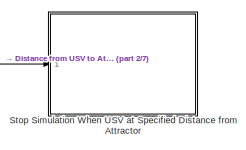
[diagram: root canvas - part 1/7, top center region]
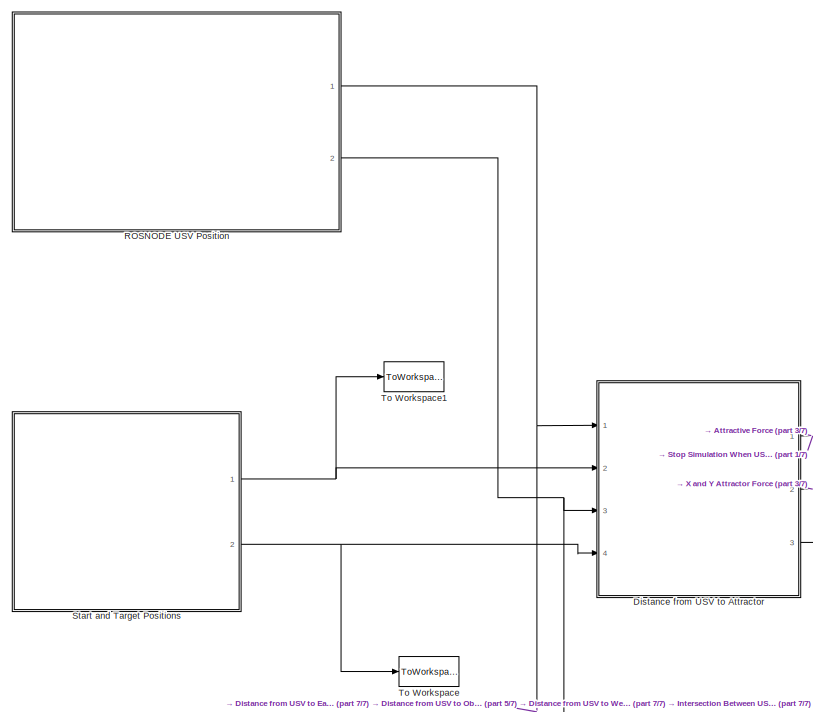
[diagram: root canvas - part 2/7, top left region]
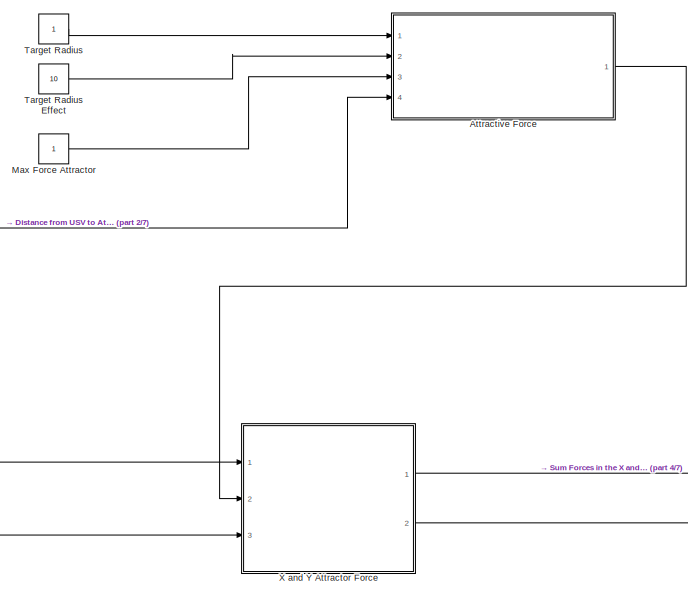
[diagram: root canvas - part 3/7, top center region]
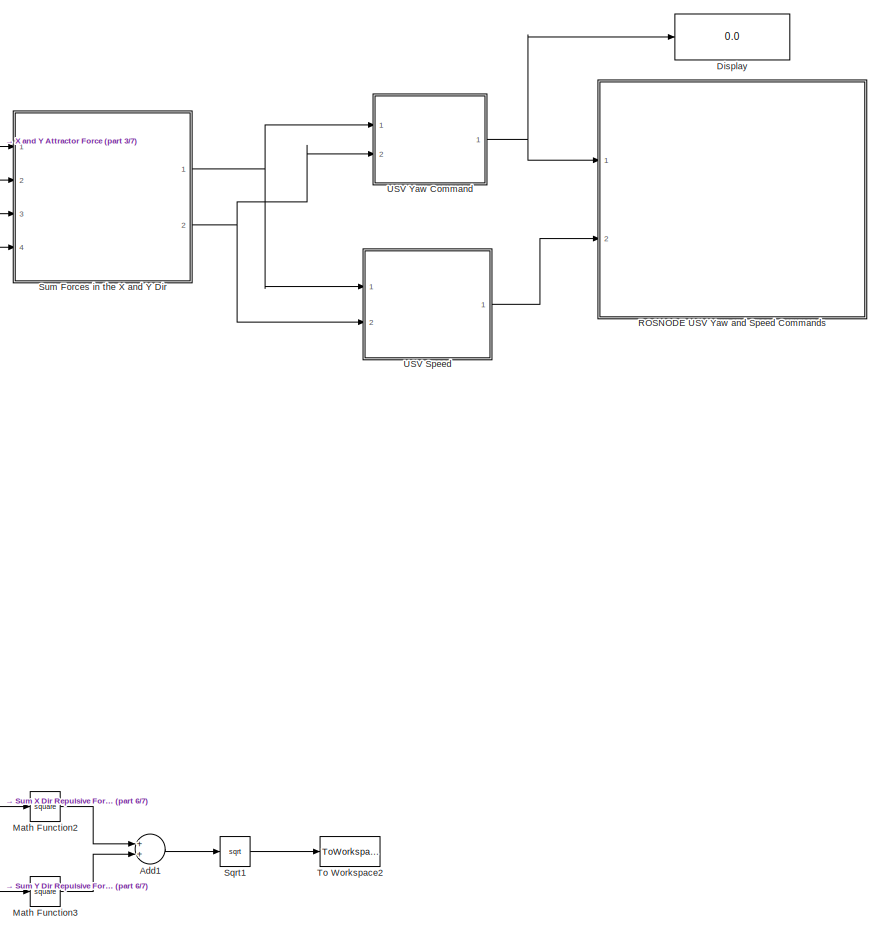
[diagram: root canvas - part 4/7, middle right region]
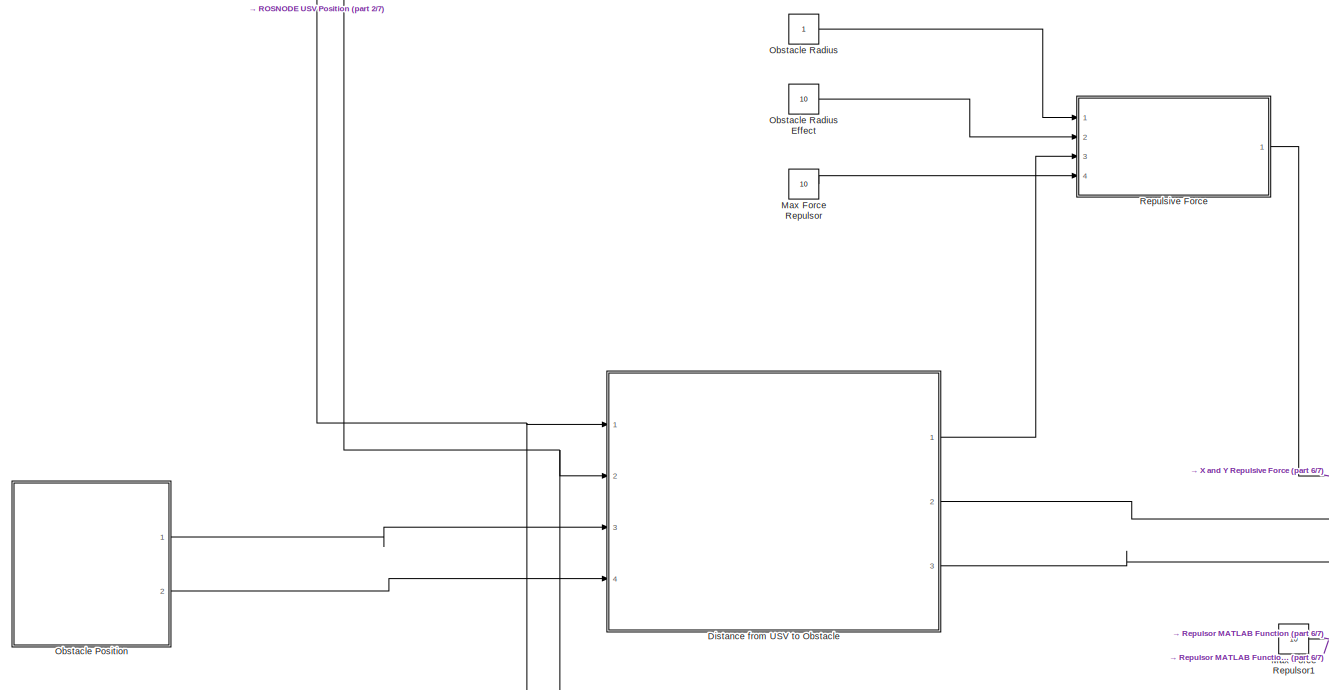
[diagram: root canvas - part 5/7, middle left region]
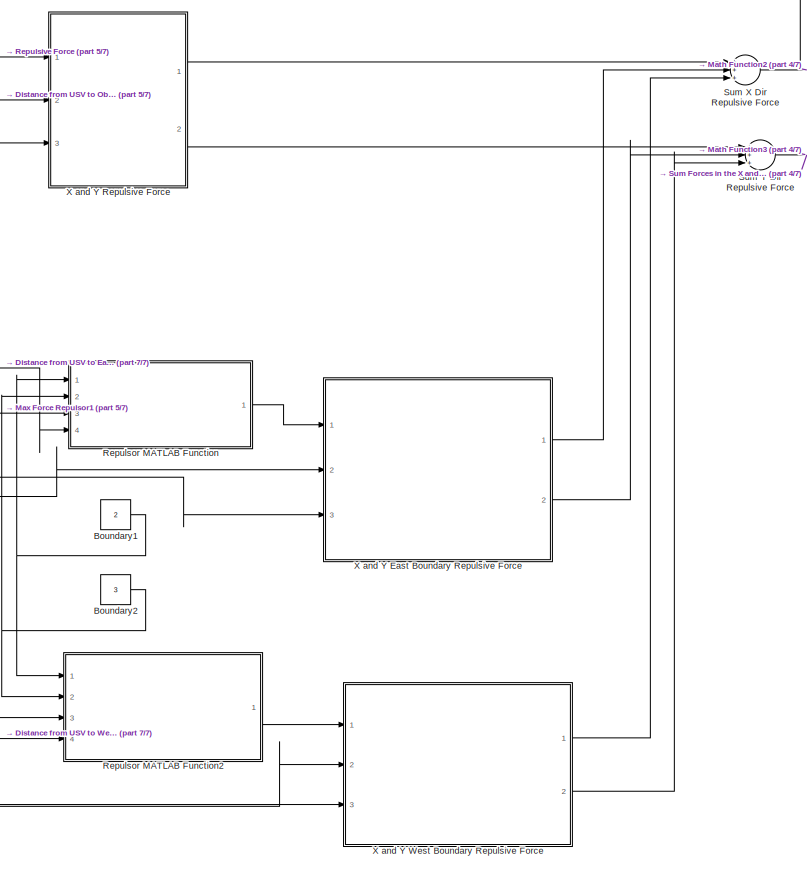
[diagram: root canvas - part 6/7, bottom center region]
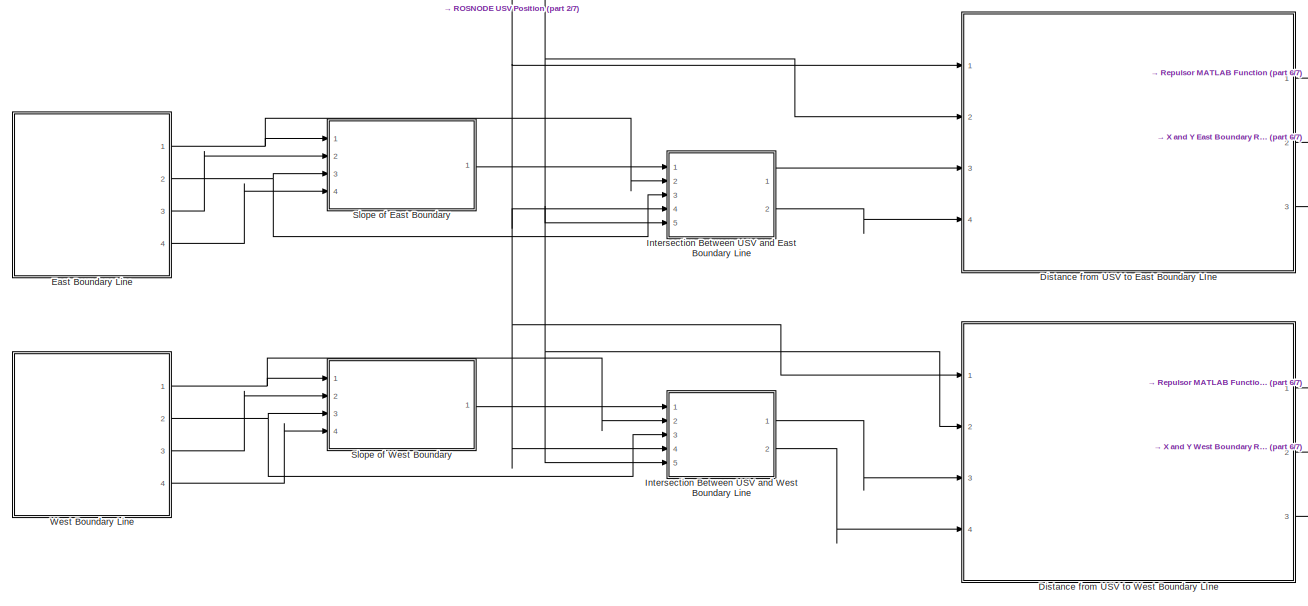
[diagram: root canvas - part 7/7, bottom left region]
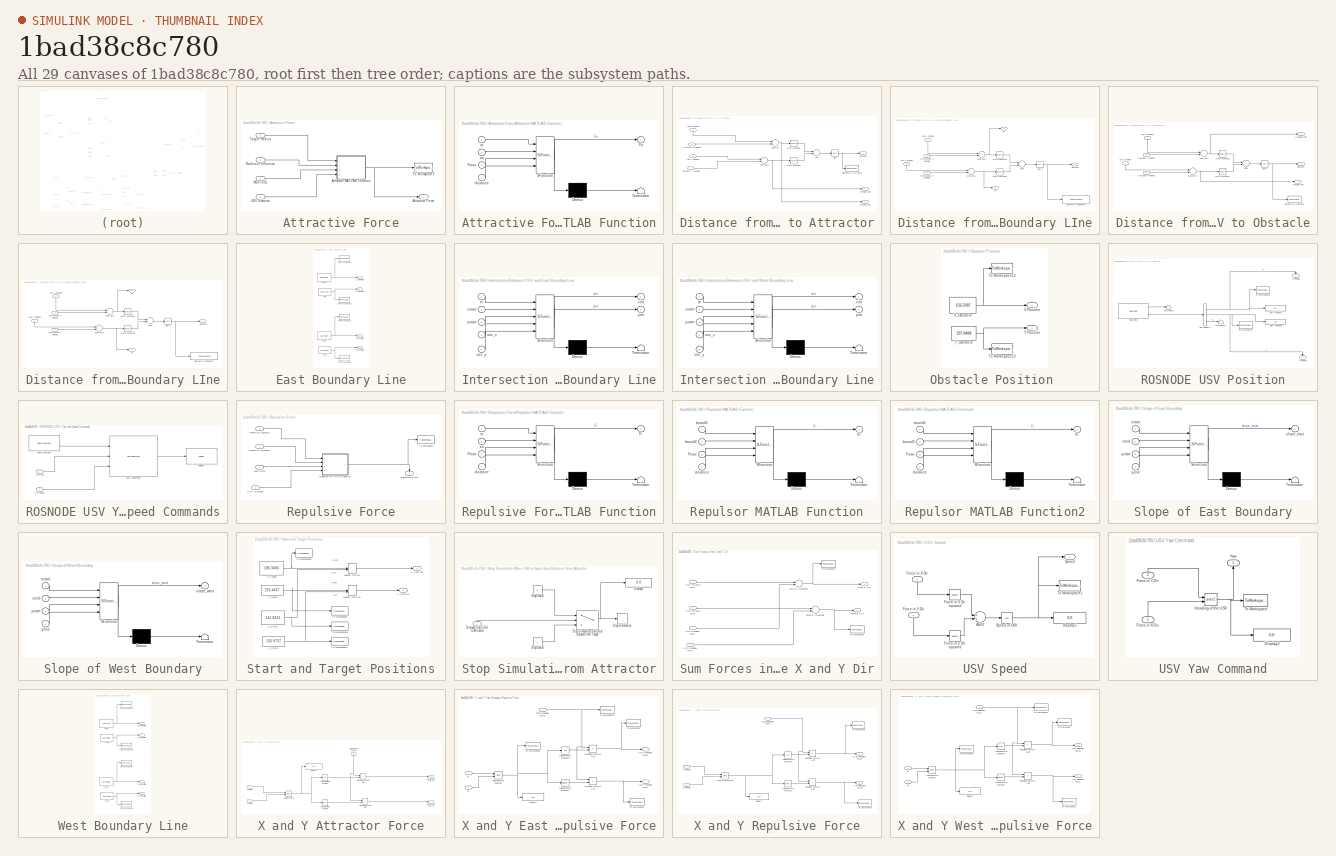
[diagram: thumbnail index - all 29 canvases of the model, root first then tree order]
MODEL slx_1bad38c8c780
KIND model
CONFIG AbsTol = auto
CONFIG FixedStep = auto
CONFIG MaxStep = auto
CONFIG MinStep = auto
CONFIG RelTol = 1e-3
CONFIG SampleTimeConstraint = Unconstrained
CONFIG Solver = VariableStepAuto
CONFIG SolverMode = Auto
CONFIG SolverName = VariableStepAuto
CONFIG StartTime = 0.0
CONFIG StopTime = inf
BLOCK [Sum] Add1
  InputSameDT = off
  OutDataTypeStr = Inherit: Inherit via back propagation
  Ports = [2, 1]
  SaturateOnIntegerOverflow = off
BLOCK [SubSystem] Attractive Force
  Ports = [4, 1]
  RequestExecContextInheritance = off
  Variant = off
BLOCK [Outport] Attractive Force/Attractive Force
  IconDisplay = Port number
BLOCK [SubSystem] Attractive Force/Attractor MATLAB Function
  ErrorFcn = Stateflow.Translate.translate
  PermitHierarchicalResolution = ExplicitOnly
  Ports = [4, 1]
  RequestExecContextInheritance = off
  SFBlockType = MATLAB Function
  TreatAsAtomicUnit = on
  Variant = off
BLOCK [Demux] Attractive Force/Attractor MATLAB Function/ Demux 
  Outputs = 1
  Ports = [1, 1]
BLOCK [S-Function] Attractive Force/Attractor MATLAB Function/ SFunction 
  EnableBusSupport = on
  FunctionName = sf_sfun
  PortCounts = [4 2]
  Ports = [4, 2]
  SFunctionDeploymentMode = off
  Tag = Stateflow S-Function pot_field_1obs_channel 2
BLOCK [Terminator] Attractive Force/Attractor MATLAB Function/ Terminator 
BLOCK [Outport] Attractive Force/Attractor MATLAB Function/Fa
  IconDisplay = Port number
BLOCK [Inport] Attractive Force/Attractor MATLAB Function/Fmax
  IconDisplay = Port number
  Port = 3
BLOCK [Inport] Attractive Force/Attractor MATLAB Function/distance
  IconDisplay = Port number
  Port = 4
BLOCK [Inport] Attractive Force/Attractor MATLAB Function/ra
  IconDisplay = Port number
BLOCK [Inport] Attractive Force/Attractor MATLAB Function/sa
  IconDisplay = Port number
  Port = 2
BLOCK [Inport] Attractive Force/Max Force
  IconDisplay = Port number
  Port = 3
BLOCK [Inport] Attractive Force/Radius of Influence
  IconDisplay = Port number
  Port = 2
BLOCK [Inport] Attractive Force/Target Radius
  IconDisplay = Port number
BLOCK [ToWorkspace] Attractive Force/To Workspace3
  FixptAsFi = on
  MaxDataPoints = inf
  Ports = [1]
  SampleTime = -1
  Save2DSignal = 3-D array (concatenate along third dimension)
  SaveFormat = Timeseries
  VariableName = Fatr
BLOCK [Inport] Attractive Force/USV Distance
  IconDisplay = Port number
  Port = 4
BLOCK [Constant] Boundary1
  OutDataTypeStr = Inherit: Inherit via back propagation
  Value = 2
BLOCK [Constant] Boundary2
  OutDataTypeStr = Inherit: Inherit via back propagation
  Value = 3
BLOCK [Display] Display
  Decimation = 1
  Ports = [1]
BLOCK [SubSystem] Distance from USV to Attractor
  Ports = [4, 3]
  RequestExecContextInheritance = off
  Variant = off
BLOCK [Sum] Distance from USV to Attractor/Add
  InputSameDT = off
  OutDataTypeStr = Inherit: Inherit via back propagation
  Ports = [2, 1]
  SaturateOnIntegerOverflow = off
BLOCK [Inport] Distance from USV to Attractor/Attractor X Position
  IconDisplay = Port number
  Port = 2
BLOCK [Inport] Distance from USV to Attractor/Attractor Y Position
  IconDisplay = Port number
  Port = 4
BLOCK [Outport] Distance from USV to Attractor/Distance
  IconDisplay = Port number
BLOCK [ToWorkspace] Distance from USV to Attractor/Distance to Attractor
  FixptAsFi = on
  MaxDataPoints = inf
  Ports = [1]
  SampleTime = -1
  Save2DSignal = 3-D array (concatenate along third dimension)
  SaveFormat = Timeseries
  VariableName = Dist2Target
BLOCK [Math] Distance from USV to Attractor/Math Function
  Operator = square
  OutDataTypeStr = Inherit: Inherit via back propagation
  Ports = [1, 1]
BLOCK [Math] Distance from USV to Attractor/Math Function1
  Operator = square
  OutDataTypeStr = Inherit: Inherit via back propagation
  Ports = [1, 1]
BLOCK [Sqrt] Distance from USV to Attractor/Sqrt
  OutDataTypeStr = Inherit: Inherit via back propagation
BLOCK [Sum] Distance from USV to Attractor/Subtract
  InputSameDT = off
  Inputs = -+
  OutDataTypeStr = Inherit: Inherit via back propagation
  Ports = [2, 1]
  SaturateOnIntegerOverflow = off
BLOCK [Sum] Distance from USV to Attractor/Subtract1
  InputSameDT = off
  Inputs = -+
  OutDataTypeStr = Inherit: Inherit via back propagation
  Ports = [2, 1]
  SaturateOnIntegerOverflow = off
BLOCK [Inport] Distance from USV to Attractor/USV X Position
  IconDisplay = Port number
BLOCK [Inport] Distance from USV to Attractor/USV Y Position
  IconDisplay = Port number
  Port = 3
BLOCK [Outport] Distance from USV to Attractor/X Position Diff
  IconDisplay = Port number
  Port = 3
BLOCK [Outport] Distance from USV to Attractor/Y Position Diff
  IconDisplay = Port number
  Port = 2
BLOCK [SubSystem] Distance from USV to East Boundary LIne
  Ports = [4, 3]
  RequestExecContextInheritance = off
  Variant = off
BLOCK [Sum] Distance from USV to East Boundary LIne/Add1
  InputSameDT = off
  OutDataTypeStr = Inherit: Inherit via back propagation
  Ports = [2, 1]
  SaturateOnIntegerOverflow = off
BLOCK [Outport] Distance from USV to East Boundary LIne/Distance
  IconDisplay = Port number
BLOCK [ToWorkspace] Distance from USV to East Boundary LIne/Distance to Boundary
  FixptAsFi = on
  MaxDataPoints = inf
  Ports = [1]
  SampleTime = -1
  Save2DSignal = 3-D array (concatenate along third dimension)
  SaveFormat = Timeseries
  VariableName = Dist2EastBoundary
BLOCK [Inport] Distance from USV to East Boundary LIne/Intersection X Position
  IconDisplay = Port number
  Port = 3
BLOCK [Inport] Distance from USV to East Boundary LIne/Intersection Y Position
  IconDisplay = Port number
  Port = 4
BLOCK [Math] Distance from USV to East Boundary LIne/Math Function2
  Operator = square
  OutDataTypeStr = Inherit: Inherit via back propagation
  Ports = [1, 1]
BLOCK [Math] Distance from USV to East Boundary LIne/Math Function3
  Operator = square
  OutDataTypeStr = Inherit: Inherit via back propagation
  Ports = [1, 1]
BLOCK [Sqrt] Distance from USV to East Boundary LIne/Sqrt1
  OutDataTypeStr = Inherit: Inherit via back propagation
BLOCK [Sum] Distance from USV to East Boundary LIne/Subtract2
  InputSameDT = off
  Inputs = +-
  OutDataTypeStr = Inherit: Inherit via back propagation
  Ports = [2, 1]
  SaturateOnIntegerOverflow = off
BLOCK [Sum] Distance from USV to East Boundary LIne/Subtract3
  InputSameDT = off
  Inputs = +-
  OutDataTypeStr = Inherit: Inherit via back propagation
  Ports = [2, 1]
  SaturateOnIntegerOverflow = off
BLOCK [Inport] Distance from USV to East Boundary LIne/USV X Position 
  IconDisplay = Port number
BLOCK [Inport] Distance from USV to East Boundary LIne/USV Y Position
  IconDisplay = Port number
  Port = 2
BLOCK [Outport] Distance from USV to East Boundary LIne/dx
  IconDisplay = Port number
  Port = 2
BLOCK [Outport] Distance from USV to East Boundary LIne/dy
  IconDisplay = Port number
  Port = 3
BLOCK [SubSystem] Distance from USV to Obstacle
  Ports = [4, 3]
  RequestExecContextInheritance = off
  Variant = off
BLOCK [Sum] Distance from USV to Obstacle/Add1
  InputSameDT = off
  OutDataTypeStr = Inherit: Inherit via back propagation
  Ports = [2, 1]
  SaturateOnIntegerOverflow = off
BLOCK [Outport] Distance from USV to Obstacle/Distance
  IconDisplay = Port number
BLOCK [ToWorkspace] Distance from USV to Obstacle/Distance to Obstacle
  FixptAsFi = on
  MaxDataPoints = inf
  Ports = [1]
  SampleTime = -1
  Save2DSignal = 3-D array (concatenate along third dimension)
  SaveFormat = Timeseries
  VariableName = Dist2Obs
BLOCK [Math] Distance from USV to Obstacle/Math Function2
  Operator = square
  OutDataTypeStr = Inherit: Inherit via back propagation
  Ports = [1, 1]
BLOCK [Math] Distance from USV to Obstacle/Math Function3
  Operator = square
  OutDataTypeStr = Inherit: Inherit via back propagation
  Ports = [1, 1]
BLOCK [Inport] Distance from USV to Obstacle/Obstacle X Position
  IconDisplay = Port number
  Port = 3
BLOCK [Inport] Distance from USV to Obstacle/Obstacle Y Position
  IconDisplay = Port number
  Port = 4
BLOCK [Sqrt] Distance from USV to Obstacle/Sqrt1
  OutDataTypeStr = Inherit: Inherit via back propagation
BLOCK [Sum] Distance from USV to Obstacle/Subtract2
  InputSameDT = off
  Inputs = -+
  OutDataTypeStr = Inherit: Inherit via back propagation
  Ports = [2, 1]
  SaturateOnIntegerOverflow = off
BLOCK [Sum] Distance from USV to Obstacle/Subtract3
  InputSameDT = off
  Inputs = -+
  OutDataTypeStr = Inherit: Inherit via back propagation
  Ports = [2, 1]
  SaturateOnIntegerOverflow = off
BLOCK [Inport] Distance from USV to Obstacle/USV X Position 
  IconDisplay = Port number
BLOCK [Inport] Distance from USV to Obstacle/USV Y Position
  IconDisplay = Port number
  Port = 2
BLOCK [Outport] Distance from USV to Obstacle/X Position Diff
  IconDisplay = Port number
  Port = 3
BLOCK [Outport] Distance from USV to Obstacle/Y Position Diff
  IconDisplay = Port number
  Port = 2
BLOCK [SubSystem] Distance from USV to West Boundary LIne
  Ports = [4, 3]
  RequestExecContextInheritance = off
  Variant = off
BLOCK [Sum] Distance from USV to West Boundary LIne/Add1
  InputSameDT = off
  OutDataTypeStr = Inherit: Inherit via back propagation
  Ports = [2, 1]
  SaturateOnIntegerOverflow = off
BLOCK [Outport] Distance from USV to West Boundary LIne/Distance
  IconDisplay = Port number
BLOCK [ToWorkspace] Distance from USV to West Boundary LIne/Distance to Boundary
  FixptAsFi = on
  MaxDataPoints = inf
  Ports = [1]
  SampleTime = -1
  Save2DSignal = 3-D array (concatenate along third dimension)
  SaveFormat = Timeseries
  VariableName = Dist2WestBoundary
BLOCK [Inport] Distance from USV to West Boundary LIne/Intersection X Position
  IconDisplay = Port number
  Port = 3
BLOCK [Inport] Distance from USV to West Boundary LIne/Intersection Y Position
  IconDisplay = Port number
  Port = 4
BLOCK [Math] Distance from USV to West Boundary LIne/Math Function2
  Operator = square
  OutDataTypeStr = Inherit: Inherit via back propagation
  Ports = [1, 1]
BLOCK [Math] Distance from USV to West Boundary LIne/Math Function3
  Operator = square
  OutDataTypeStr = Inherit: Inherit via back propagation
  Ports = [1, 1]
BLOCK [Sqrt] Distance from USV to West Boundary LIne/Sqrt1
  OutDataTypeStr = Inherit: Inherit via back propagation
BLOCK [Sum] Distance from USV to West Boundary LIne/Subtract2
  InputSameDT = off
  Inputs = +-
  OutDataTypeStr = Inherit: Inherit via back propagation
  Ports = [2, 1]
  SaturateOnIntegerOverflow = off
BLOCK [Sum] Distance from USV to West Boundary LIne/Subtract3
  InputSameDT = off
  Inputs = +-
  OutDataTypeStr = Inherit: Inherit via back propagation
  Ports = [2, 1]
  SaturateOnIntegerOverflow = off
BLOCK [Inport] Distance from USV to West Boundary LIne/USV X Position 
  IconDisplay = Port number
BLOCK [Inport] Distance from USV to West Boundary LIne/USV Y Position
  IconDisplay = Port number
  Port = 2
BLOCK [Outport] Distance from USV to West Boundary LIne/dx
  IconDisplay = Port number
  Port = 2
BLOCK [Outport] Distance from USV to West Boundary LIne/dy
  IconDisplay = Port number
  Port = 3
BLOCK [SubSystem] East Boundary Line
  Ports = [0, 4]
  RequestExecContextInheritance = off
  Variant = off
BLOCK [ToWorkspace] East Boundary Line/To Workspace1
  FixptAsFi = on
  MaxDataPoints = inf
  Ports = [1]
  SampleTime = -1
  Save2DSignal = 3-D array (concatenate along third dimension)
  SaveFormat = Timeseries
  VariableName = Xse
BLOCK [ToWorkspace] East Boundary Line/To Workspace12
  FixptAsFi = on
  MaxDataPoints = inf
  Ports = [1]
  SampleTime = -1
  Save2DSignal = 3-D array (concatenate along third dimension)
  SaveFormat = Timeseries
  VariableName = Xne
BLOCK [ToWorkspace] East Boundary Line/To Workspace13
  FixptAsFi = on
  MaxDataPoints = inf
  Ports = [1]
  SampleTime = -1
  Save2DSignal = 3-D array (concatenate along third dimension)
  SaveFormat = Timeseries
  VariableName = Yne
BLOCK [ToWorkspace] East Boundary Line/To Workspace2
  FixptAsFi = on
  MaxDataPoints = inf
  Ports = [1]
  SampleTime = -1
  Save2DSignal = 3-D array (concatenate along third dimension)
  SaveFormat = Timeseries
  VariableName = Yse
BLOCK [Constant] East Boundary Line/X_NE 
  OutDataTypeStr = Inherit: Inherit via back propagation
  Value = 196.0258
BLOCK [Constant] East Boundary Line/X_SE
  OutDataTypeStr = Inherit: Inherit via back propagation
  Value = 167.9807
BLOCK [Outport] East Boundary Line/X_ne Position
  IconDisplay = Port number
BLOCK [Outport] East Boundary Line/X_se Position
  IconDisplay = Port number
  Port = 3
BLOCK [Constant] East Boundary Line/Y_NE
  OutDataTypeStr = Inherit: Inherit via back propagation
  Value = 238.4719
BLOCK [Constant] East Boundary Line/Y_SE
  OutDataTypeStr = Inherit: Inherit via back propagation
  Value = 149.5010
BLOCK [Outport] East Boundary Line/Y_ne Position
  IconDisplay = Port number
  Port = 2
BLOCK [Outport] East Boundary Line/Y_se Position
  IconDisplay = Port number
  Port = 4
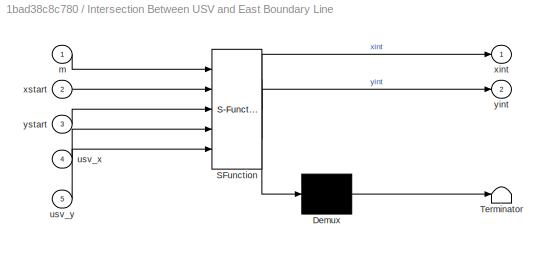
BLOCK [SubSystem] Intersection Between USV and East Boundary Line
  ErrorFcn = Stateflow.Translate.translate
  PermitHierarchicalResolution = ExplicitOnly
  Ports = [5, 2]
  RequestExecContextInheritance = off
  SFBlockType = MATLAB Function
  TreatAsAtomicUnit = on
  Variant = off
BLOCK [Demux] Intersection Between USV and East Boundary Line/ Demux 
  Outputs = 1
  Ports = [1, 1]
BLOCK [S-Function] Intersection Between USV and East Boundary Line/ SFunction 
  EnableBusSupport = on
  FunctionName = sf_sfun
  PortCounts = [5 3]
  Ports = [5, 3]
  SFunctionDeploymentMode = off
  Tag = Stateflow S-Function pot_field_1obs_channel 5
BLOCK [Terminator] Intersection Between USV and East Boundary Line/ Terminator 
BLOCK [Inport] Intersection Between USV and East Boundary Line/m
  IconDisplay = Port number
BLOCK [Inport] Intersection Between USV and East Boundary Line/usv_x
  IconDisplay = Port number
  Port = 4
BLOCK [Inport] Intersection Between USV and East Boundary Line/usv_y
  IconDisplay = Port number
  Port = 5
BLOCK [Outport] Intersection Between USV and East Boundary Line/xint
  IconDisplay = Port number
BLOCK [Inport] Intersection Between USV and East Boundary Line/xstart
  IconDisplay = Port number
  Port = 2
BLOCK [Outport] Intersection Between USV and East Boundary Line/yint
  IconDisplay = Port number
  Port = 2
BLOCK [Inport] Intersection Between USV and East Boundary Line/ystart
  IconDisplay = Port number
  Port = 3
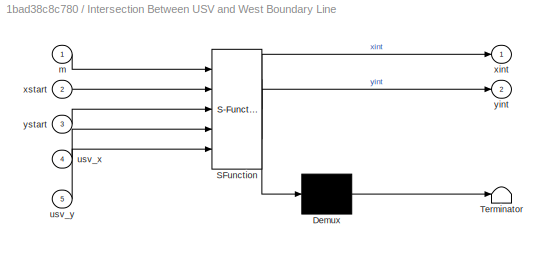
BLOCK [SubSystem] Intersection Between USV and West Boundary Line
  ErrorFcn = Stateflow.Translate.translate
  PermitHierarchicalResolution = ExplicitOnly
  Ports = [5, 2]
  RequestExecContextInheritance = off
  SFBlockType = MATLAB Function
  TreatAsAtomicUnit = on
  Variant = off
BLOCK [Demux] Intersection Between USV and West Boundary Line/ Demux 
  Outputs = 1
  Ports = [1, 1]
BLOCK [S-Function] Intersection Between USV and West Boundary Line/ SFunction 
  EnableBusSupport = on
  FunctionName = sf_sfun
  PortCounts = [5 3]
  Ports = [5, 3]
  SFunctionDeploymentMode = off
  Tag = Stateflow S-Function pot_field_1obs_channel 6
BLOCK [Terminator] Intersection Between USV and West Boundary Line/ Terminator 
BLOCK [Inport] Intersection Between USV and West Boundary Line/m
  IconDisplay = Port number
BLOCK [Inport] Intersection Between USV and West Boundary Line/usv_x
  IconDisplay = Port number
  Port = 4
BLOCK [Inport] Intersection Between USV and West Boundary Line/usv_y
  IconDisplay = Port number
  Port = 5
BLOCK [Outport] Intersection Between USV and West Boundary Line/xint
  IconDisplay = Port number
BLOCK [Inport] Intersection Between USV and West Boundary Line/xstart
  IconDisplay = Port number
  Port = 2
BLOCK [Outport] Intersection Between USV and West Boundary Line/yint
  IconDisplay = Port number
  Port = 2
BLOCK [Inport] Intersection Between USV and West Boundary Line/ystart
  IconDisplay = Port number
  Port = 3
BLOCK [Math] Math Function2
  Operator = square
  OutDataTypeStr = Inherit: Inherit via back propagation
  Ports = [1, 1]
BLOCK [Math] Math Function3
  Operator = square
  OutDataTypeStr = Inherit: Inherit via back propagation
  Ports = [1, 1]
BLOCK [Constant] Max Force Attractor
  OutDataTypeStr = Inherit: Inherit via back propagation
BLOCK [Constant] Max Force Repulsor
  OutDataTypeStr = Inherit: Inherit via back propagation
  Value = 10
BLOCK [Constant] Max Force Repulsor1
  OutDataTypeStr = Inherit: Inherit via back propagation
  Value = 10
BLOCK [SubSystem] Obstacle Position 
  Ports = [0, 2]
  RequestExecContextInheritance = off
  Variant = off
BLOCK [ToWorkspace] Obstacle Position /To Workspace12
  FixptAsFi = on
  MaxDataPoints = inf
  Ports = [1]
  SampleTime = -1
  Save2DSignal = 3-D array (concatenate along third dimension)
  SaveFormat = Timeseries
  VariableName = Xobstacle
BLOCK [ToWorkspace] Obstacle Position /To Workspace13
  FixptAsFi = on
  MaxDataPoints = inf
  Ports = [1]
  SampleTime = -1
  Save2DSignal = 3-D array (concatenate along third dimension)
  SaveFormat = Timeseries
  VariableName = Yobstacle
BLOCK [Outport] Obstacle Position /X Position
  IconDisplay = Port number
BLOCK [Constant] Obstacle Position /X_Obstacle 
  OutDataTypeStr = Inherit: Inherit via back propagation
  Value = 156.2387
BLOCK [Outport] Obstacle Position /Y Position
  IconDisplay = Port number
  Port = 2
BLOCK [Constant] Obstacle Position /Y_Obstacle
  OutDataTypeStr = Inherit: Inherit via back propagation
  Value = 197.8488
BLOCK [Constant] Obstacle Radius
  OutDataTypeStr = Inherit: Inherit via back propagation
BLOCK [Constant] Obstacle Radius Effect
  OutDataTypeStr = Inherit: Inherit via back propagation
  Value = 10
BLOCK [SubSystem] ROSNODE USV Position
  Ports = [0, 2]
  RequestExecContextInheritance = off
  Variant = off
BLOCK [BusSelector] ROSNODE USV Position/Bus Selector
  OutputSignals = Pose.Pose.Position.X,Pose.Pose.Position.Y,Pose.Pose.Position.Z
  Ports = [1, 3]
BLOCK [Reference] ROSNODE USV Position/Subscribe  REF=robotlib/Subscribe
  Ports = [0, 2]
  SourceBlock = robotlib/Subscribe
  SourceLibraryInfo = This block requires Robotics System Toolbox
  SourceType = ROS Subscribe
BLOCK [Terminator] ROSNODE USV Position/Terminator
BLOCK [Terminator] ROSNODE USV Position/Terminator1
BLOCK [ToWorkspace] ROSNODE USV Position/To Workspace6
  FixptAsFi = on
  MaxDataPoints = inf
  Ports = [1]
  SampleTime = -1
  Save2DSignal = 3-D array (concatenate along third dimension)
  SaveFormat = Timeseries
  VariableName = Xusv
BLOCK [ToWorkspace] ROSNODE USV Position/To Workspace7
  FixptAsFi = on
  MaxDataPoints = inf
  Ports = [1]
  SampleTime = -1
  Save2DSignal = 3-D array (concatenate along third dimension)
  SaveFormat = Timeseries
  VariableName = Yusv
BLOCK [Display] ROSNODE USV Position/USV X Position
  Decimation = 1
  Ports = [1]
BLOCK [Display] ROSNODE USV Position/USV Y Position
  Decimation = 1
  Ports = [1]
BLOCK [Outport] ROSNODE USV Position/X Position
  IconDisplay = Port number
BLOCK [Outport] ROSNODE USV Position/Y Position
  IconDisplay = Port number
  Port = 2
BLOCK [SubSystem] ROSNODE USV Yaw and Speed Commands
  Ports = [2]
  RequestExecContextInheritance = off
  Variant = off
BLOCK [Reference] ROSNODE USV Yaw and Speed Commands/Blank Message  REF=robotlib/Blank Message
  Ports = [0, 1]
  SourceBlock = robotlib/Blank Message
  SourceLibraryInfo = This block requires Robotics System Toolbox
  SourceType = ROS Blank Message
BLOCK [BusAssignment] ROSNODE USV Yaw and Speed Commands/Bus Assignment
  AssignedSignals = Yaw,Speed
  Ports = [3, 1]
BLOCK [Reference] ROSNODE USV Yaw and Speed Commands/Publish1  REF=robotlib/Publish
  AttributesFormatString = %<messageType>
  Ports = [1]
  SourceBlock = robotlib/Publish
  SourceLibraryInfo = This block requires Robotics System Toolbox
  SourceType = ROS Publish
BLOCK [Inport] ROSNODE USV Yaw and Speed Commands/USV Speed
  IconDisplay = Port number
  Port = 2
BLOCK [Inport] ROSNODE USV Yaw and Speed Commands/USV Yaw
  IconDisplay = Port number
BLOCK [SubSystem] Repulsive Force
  Ports = [4, 1]
  RequestExecContextInheritance = off
  Variant = off
BLOCK [Inport] Repulsive Force/Max Force
  IconDisplay = Port number
  Port = 4
BLOCK [Inport] Repulsive Force/Radius of Influence
  IconDisplay = Port number
  Port = 2
BLOCK [Inport] Repulsive Force/Radius of Obstacle 
  IconDisplay = Port number
BLOCK [Outport] Repulsive Force/Repulsive Force
  IconDisplay = Port number
BLOCK [SubSystem] Repulsive Force/Repulsor MATLAB Function
  ErrorFcn = Stateflow.Translate.translate
  PermitHierarchicalResolution = ExplicitOnly
  Ports = [4, 1]
  RequestExecContextInheritance = off
  SFBlockType = MATLAB Function
  TreatAsAtomicUnit = on
  Variant = off
BLOCK [Demux] Repulsive Force/Repulsor MATLAB Function/ Demux 
  Outputs = 1
  Ports = [1, 1]
BLOCK [S-Function] Repulsive Force/Repulsor MATLAB Function/ SFunction 
  EnableBusSupport = on
  FunctionName = sf_sfun
  PortCounts = [4 2]
  Ports = [4, 2]
  SFunctionDeploymentMode = off
  Tag = Stateflow S-Function pot_field_1obs_channel 1
BLOCK [Terminator] Repulsive Force/Repulsor MATLAB Function/ Terminator 
BLOCK [Inport] Repulsive Force/Repulsor MATLAB Function/Fmax
  IconDisplay = Port number
  Port = 3
BLOCK [Outport] Repulsive Force/Repulsor MATLAB Function/Fr
  IconDisplay = Port number
BLOCK [Inport] Repulsive Force/Repulsor MATLAB Function/distance
  IconDisplay = Port number
  Port = 4
BLOCK [Inport] Repulsive Force/Repulsor MATLAB Function/ro
  IconDisplay = Port number
BLOCK [Inport] Repulsive Force/Repulsor MATLAB Function/so
  IconDisplay = Port number
  Port = 2
BLOCK [ToWorkspace] Repulsive Force/To Workspace
  FixptAsFi = on
  MaxDataPoints = inf
  Ports = [1]
  SampleTime = -1
  Save2DSignal = 3-D array (concatenate along third dimension)
  SaveFormat = Timeseries
  VariableName = Fr_obs
BLOCK [Inport] Repulsive Force/USV Distance
  IconDisplay = Port number
  Port = 3
BLOCK [SubSystem] Repulsor MATLAB Function
  ErrorFcn = Stateflow.Translate.translate
  PermitHierarchicalResolution = ExplicitOnly
  Ports = [4, 1]
  RequestExecContextInheritance = off
  SFBlockType = MATLAB Function
  TreatAsAtomicUnit = on
  Variant = off
BLOCK [Demux] Repulsor MATLAB Function/ Demux 
  Outputs = 1
  Ports = [1, 1]
BLOCK [S-Function] Repulsor MATLAB Function/ SFunction 
  EnableBusSupport = on
  FunctionName = sf_sfun
  PortCounts = [4 2]
  Ports = [4, 2]
  SFunctionDeploymentMode = off
  Tag = Stateflow S-Function pot_field_1obs_channel 7
BLOCK [Terminator] Repulsor MATLAB Function/ Terminator 
BLOCK [Inport] Repulsor MATLAB Function/Fmax
  IconDisplay = Port number
  Port = 3
BLOCK [Outport] Repulsor MATLAB Function/Fr
  IconDisplay = Port number
BLOCK [Inport] Repulsor MATLAB Function/bound1
  IconDisplay = Port number
BLOCK [Inport] Repulsor MATLAB Function/bound2
  IconDisplay = Port number
  Port = 2
BLOCK [Inport] Repulsor MATLAB Function/distance
  IconDisplay = Port number
  Port = 4
BLOCK [SubSystem] Repulsor MATLAB Function2
  ErrorFcn = Stateflow.Translate.translate
  PermitHierarchicalResolution = ExplicitOnly
  Ports = [4, 1]
  RequestExecContextInheritance = off
  SFBlockType = MATLAB Function
  TreatAsAtomicUnit = on
  Variant = off
BLOCK [Demux] Repulsor MATLAB Function2/ Demux 
  Outputs = 1
  Ports = [1, 1]
BLOCK [S-Function] Repulsor MATLAB Function2/ SFunction 
  EnableBusSupport = on
  FunctionName = sf_sfun
  PortCounts = [4 2]
  Ports = [4, 2]
  SFunctionDeploymentMode = off
  Tag = Stateflow S-Function pot_field_1obs_channel 9
BLOCK [Terminator] Repulsor MATLAB Function2/ Terminator 
BLOCK [Inport] Repulsor MATLAB Function2/Fmax
  IconDisplay = Port number
  Port = 3
BLOCK [Outport] Repulsor MATLAB Function2/Fr
  IconDisplay = Port number
BLOCK [Inport] Repulsor MATLAB Function2/bound1
  IconDisplay = Port number
BLOCK [Inport] Repulsor MATLAB Function2/bound2
  IconDisplay = Port number
  Port = 2
BLOCK [Inport] Repulsor MATLAB Function2/distance
  IconDisplay = Port number
  Port = 4
BLOCK [SubSystem] Slope of East Boundary
  ErrorFcn = Stateflow.Translate.translate
  PermitHierarchicalResolution = ExplicitOnly
  Ports = [4, 1]
  RequestExecContextInheritance = off
  SFBlockType = MATLAB Function
  TreatAsAtomicUnit = on
  Variant = off
BLOCK [Demux] Slope of East Boundary/ Demux 
  Outputs = 1
  Ports = [1, 1]
BLOCK [S-Function] Slope of East Boundary/ SFunction 
  EnableBusSupport = on
  FunctionName = sf_sfun
  PortCounts = [4 2]
  Ports = [4, 2]
  SFunctionDeploymentMode = off
  Tag = Stateflow S-Function pot_field_1obs_channel 3
BLOCK [Terminator] Slope of East Boundary/ Terminator 
BLOCK [Outport] Slope of East Boundary/slope_east
  IconDisplay = Port number
BLOCK [Inport] Slope of East Boundary/xend
  IconDisplay = Port number
  Port = 2
BLOCK [Inport] Slope of East Boundary/xstart
  IconDisplay = Port number
BLOCK [Inport] Slope of East Boundary/yend
  IconDisplay = Port number
  Port = 4
BLOCK [Inport] Slope of East Boundary/ystart
  IconDisplay = Port number
  Port = 3
BLOCK [SubSystem] Slope of West Boundary
  ErrorFcn = Stateflow.Translate.translate
  PermitHierarchicalResolution = ExplicitOnly
  Ports = [4, 1]
  RequestExecContextInheritance = off
  SFBlockType = MATLAB Function
  TreatAsAtomicUnit = on
  Variant = off
BLOCK [Demux] Slope of West Boundary/ Demux 
  Outputs = 1
  Ports = [1, 1]
BLOCK [S-Function] Slope of West Boundary/ SFunction 
  EnableBusSupport = on
  FunctionName = sf_sfun
  PortCounts = [4 2]
  Ports = [4, 2]
  SFunctionDeploymentMode = off
  Tag = Stateflow S-Function pot_field_1obs_channel 4
BLOCK [Terminator] Slope of West Boundary/ Terminator 
BLOCK [Outport] Slope of West Boundary/slope_west
  IconDisplay = Port number
BLOCK [Inport] Slope of West Boundary/xend
  IconDisplay = Port number
  Port = 2
BLOCK [Inport] Slope of West Boundary/xstart
  IconDisplay = Port number
BLOCK [Inport] Slope of West Boundary/yend
  IconDisplay = Port number
  Port = 4
BLOCK [Inport] Slope of West Boundary/ystart
  IconDisplay = Port number
  Port = 3
BLOCK [Sqrt] Sqrt1
  OutDataTypeStr = Inherit: Inherit via back propagation
BLOCK [SubSystem] Start and Target Positions
  Ports = [0, 2]
  RequestExecContextInheritance = off
  Variant = off
BLOCK [ManualSwitch] Start and Target Positions/Manual Switch
BLOCK [ManualSwitch] Start and Target Positions/Manual Switch1
BLOCK [ToWorkspace] Start and Target Positions/To Workspace10
  FixptAsFi = on
  MaxDataPoints = inf
  Ports = [1]
  SampleTime = -1
  Save2DSignal = 3-D array (concatenate along third dimension)
  SaveFormat = Timeseries
  VariableName = Xstart
BLOCK [ToWorkspace] Start and Target Positions/To Workspace11
  FixptAsFi = on
  MaxDataPoints = inf
  Ports = [1]
  SampleTime = -1
  Save2DSignal = 3-D array (concatenate along third dimension)
  SaveFormat = Timeseries
  VariableName = Ystart
BLOCK [ToWorkspace] Start and Target Positions/To Workspace8
  FixptAsFi = on
  MaxDataPoints = inf
  Ports = [1]
  SampleTime = -1
  Save2DSignal = 3-D array (concatenate along third dimension)
  SaveFormat = Timeseries
  VariableName = Xtarget
BLOCK [ToWorkspace] Start and Target Positions/To Workspace9
  FixptAsFi = on
  MaxDataPoints = inf
  Ports = [1]
  SampleTime = -1
  Save2DSignal = 3-D array (concatenate along third dimension)
  SaveFormat = Timeseries
  VariableName = Ytarget
BLOCK [Outport] Start and Target Positions/X Position
  IconDisplay = Port number
BLOCK [Constant] Start and Target Positions/X_Start1
  OutDataTypeStr = Inherit: Inherit via back propagation
  Value = 141.8411
BLOCK [Constant] Start and Target Positions/X_Target
  OutDataTypeStr = Inherit: Inherit via back propagation
  Value = 186.3466
BLOCK [Outport] Start and Target Positions/Y Position
  IconDisplay = Port number
  Port = 2
BLOCK [Constant] Start and Target Positions/Y_Start1
  OutDataTypeStr = Inherit: Inherit via back propagation
  Value = 150.9737
BLOCK [Constant] Start and Target Positions/Y_Target
  OutDataTypeStr = Inherit: Inherit via back propagation
  Value = 255.4457
BLOCK [SubSystem] Stop Simulation When USV at Specified Distance from Attractor
  Ports = [1]
  RequestExecContextInheritance = off
  Variant = off
BLOCK [Display] Stop Simulation When USV at Specified Distance from Attractor/Display1
  Decimation = 1
  Ports = [1]
BLOCK [Inport] Stop Simulation When USV at Specified Distance from Attractor/Distance from USV to Attractor
  IconDisplay = Port number
BLOCK [Constant] Stop Simulation When USV at Specified Distance from Attractor/Stop Gain1
  OutDataTypeStr = Inherit: Inherit via back propagation
  Value = 0
BLOCK [Constant] Stop Simulation When USV at Specified Distance from Attractor/Stop Gain2
  OutDataTypeStr = Inherit: Inherit via back propagation
BLOCK [Stop] Stop Simulation When USV at Specified Distance from Attractor/Stop Simulation
BLOCK [Switch] Stop Simulation When USV at Specified Distance from Attractor/Stop Simulation Switch at distance from Target
  Criteria = u2 > Threshold
  InputSameDT = off
  SaturateOnIntegerOverflow = off
  Threshold = 1.5
BLOCK [SubSystem] Sum Forces in the X and Y Dir
  Ports = [4, 2]
  RequestExecContextInheritance = off
  Variant = off
BLOCK [Outport] Sum Forces in the X and Y Dir/Force in X Dir
  IconDisplay = Port number
BLOCK [Sum] Sum Forces in the X and Y Dir/Force in X Direction
  InputSameDT = off
  OutDataTypeStr = Inherit: Inherit via back propagation
  Ports = [2, 1]
  SaturateOnIntegerOverflow = off
BLOCK [Outport] Sum Forces in the X and Y Dir/Force in Y Dir
  IconDisplay = Port number
  Port = 2
BLOCK [Sum] Sum Forces in the X and Y Dir/Force in Y Direction
  InputSameDT = off
  OutDataTypeStr = Inherit: Inherit via back propagation
  Ports = [2, 1]
  SaturateOnIntegerOverflow = off
BLOCK [ToWorkspace] Sum Forces in the X and Y Dir/To Workspace4
  FixptAsFi = on
  MaxDataPoints = inf
  Ports = [1]
  SampleTime = -1
  Save2DSignal = 3-D array (concatenate along third dimension)
  SaveFormat = Timeseries
  VariableName = Fx
BLOCK [ToWorkspace] Sum Forces in the X and Y Dir/To Workspace5
  FixptAsFi = on
  MaxDataPoints = inf
  Ports = [1]
  SampleTime = -1
  Save2DSignal = 3-D array (concatenate along third dimension)
  SaveFormat = Timeseries
  VariableName = Fy
BLOCK [Inport] Sum Forces in the X and Y Dir/X Dir Attractor Force
  IconDisplay = Port number
BLOCK [Inport] Sum Forces in the X and Y Dir/X Dir Repulsive Force
  IconDisplay = Port number
  Port = 3
BLOCK [Inport] Sum Forces in the X and Y Dir/Y Dir Attractor Force
  IconDisplay = Port number
  Port = 2
BLOCK [Inport] Sum Forces in the X and Y Dir/Y Dir Repulsive Force 
  IconDisplay = Port number
  Port = 4
BLOCK [Sum] Sum X Dir Repulsive Force
  InputSameDT = off
  Inputs = +++
  OutDataTypeStr = Inherit: Inherit via internal rule
  Ports = [3, 1]
  SaturateOnIntegerOverflow = off
BLOCK [Sum] Sum Y Dir Repulsive Force
  InputSameDT = off
  Inputs = +++
  OutDataTypeStr = Inherit: Inherit via internal rule
  Ports = [3, 1]
  SaturateOnIntegerOverflow = off
BLOCK [Constant] Target Radius
  OutDataTypeStr = Inherit: Inherit via back propagation
BLOCK [Constant] Target Radius Effect
  OutDataTypeStr = Inherit: Inherit via back propagation
  Value = 10
BLOCK [ToWorkspace] To Workspace
  FixptAsFi = on
  MaxDataPoints = inf
  Ports = [1]
  SampleTime = -1
  Save2DSignal = 3-D array (concatenate along third dimension)
  SaveFormat = Timeseries
  VariableName = Yposit
BLOCK [ToWorkspace] To Workspace1
  FixptAsFi = on
  MaxDataPoints = inf
  Ports = [1]
  SampleTime = -1
  Save2DSignal = 3-D array (concatenate along third dimension)
  SaveFormat = Timeseries
  VariableName = Xposit
BLOCK [ToWorkspace] To Workspace2
  FixptAsFi = on
  MaxDataPoints = inf
  Ports = [1]
  SampleTime = -1
  Save2DSignal = 3-D array (concatenate along third dimension)
  SaveFormat = Timeseries
  VariableName = Frep
BLOCK [SubSystem] USV Speed
  Ports = [2, 1]
  RequestExecContextInheritance = off
  Variant = off
BLOCK [Sum] USV Speed/Add2
  InputSameDT = off
  OutDataTypeStr = Inherit: Inherit via back propagation
  Ports = [2, 1]
  SaturateOnIntegerOverflow = off
BLOCK [Display] USV Speed/Display5
  Decimation = 1
  Ports = [1]
BLOCK [Inport] USV Speed/Force in X Dir
  IconDisplay = Port number
BLOCK [Math] USV Speed/Force in X Dir squared
  Operator = square
  OutDataTypeStr = Inherit: Inherit via back propagation
  Ports = [1, 1]
BLOCK [Inport] USV Speed/Force in Y Dir
  IconDisplay = Port number
  Port = 2
BLOCK [Math] USV Speed/Force in y Dir squared
  Operator = square
  OutDataTypeStr = Inherit: Inherit via back propagation
  Ports = [1, 1]
BLOCK [Outport] USV Speed/Speed
  IconDisplay = Port number
BLOCK [Sqrt] USV Speed/Speed of USV
  OutDataTypeStr = Inherit: Inherit via back propagation
BLOCK [ToWorkspace] USV Speed/To Workspace1
  FixptAsFi = on
  MaxDataPoints = inf
  Ports = [1]
  SampleTime = -1
  Save2DSignal = 3-D array (concatenate along third dimension)
  SaveFormat = Timeseries
  VariableName = speed
BLOCK [SubSystem] USV Yaw Command
  Ports = [2, 1]
  RequestExecContextInheritance = off
  Variant = off
BLOCK [Display] USV Yaw Command/Display2
  Decimation = 1
  Ports = [1]
BLOCK [Inport] USV Yaw Command/Force in X Dir
  IconDisplay = Port number
BLOCK [Inport] USV Yaw Command/Force in Y Dir 
  IconDisplay = Port number
  Port = 2
BLOCK [Trigonometry] USV Yaw Command/Heading of the USV
  Operator = atan2
  Ports = [2, 1]
BLOCK [ToWorkspace] USV Yaw Command/To Workspace
  FixptAsFi = on
  MaxDataPoints = inf
  Ports = [1]
  SampleTime = -1
  Save2DSignal = 3-D array (concatenate along third dimension)
  SaveFormat = Timeseries
  VariableName = yaw
BLOCK [Outport] USV Yaw Command/Yaw
  IconDisplay = Port number
BLOCK [SubSystem] West Boundary Line
  Ports = [0, 4]
  RequestExecContextInheritance = off
  Variant = off
BLOCK [ToWorkspace] West Boundary Line/To Workspace1
  FixptAsFi = on
  MaxDataPoints = inf
  Ports = [1]
  SampleTime = -1
  Save2DSignal = 3-D array (concatenate along third dimension)
  SaveFormat = Timeseries
  VariableName = Xsw
BLOCK [ToWorkspace] West Boundary Line/To Workspace12
  FixptAsFi = on
  MaxDataPoints = inf
  Ports = [1]
  SampleTime = -1
  Save2DSignal = 3-D array (concatenate along third dimension)
  SaveFormat = Timeseries
  VariableName = Xnw
BLOCK [ToWorkspace] West Boundary Line/To Workspace13
  FixptAsFi = on
  MaxDataPoints = inf
  Ports = [1]
  SampleTime = -1
  Save2DSignal = 3-D array (concatenate along third dimension)
  SaveFormat = Timeseries
  VariableName = Ynw
BLOCK [ToWorkspace] West Boundary Line/To Workspace2
  FixptAsFi = on
  MaxDataPoints = inf
  Ports = [1]
  SampleTime = -1
  Save2DSignal = 3-D array (concatenate along third dimension)
  SaveFormat = Timeseries
  VariableName = Ysw
BLOCK [Constant] West Boundary Line/X_NW 
  OutDataTypeStr = Inherit: Inherit via back propagation
  Value = 148.1791
BLOCK [Constant] West Boundary Line/X_SW
  OutDataTypeStr = Inherit: Inherit via back propagation
  Value = 114.8488
BLOCK [Outport] West Boundary Line/X_nw Position
  IconDisplay = Port number
BLOCK [Outport] West Boundary Line/X_sw Position
  IconDisplay = Port number
  Port = 3
BLOCK [Constant] West Boundary Line/Y_NW
  OutDataTypeStr = Inherit: Inherit via back propagation
  Value = 229.4863
BLOCK [Constant] West Boundary Line/Y_SW
  OutDataTypeStr = Inherit: Inherit via back propagation
  Value = 102.3997
BLOCK [Outport] West Boundary Line/Y_nw Position
  IconDisplay = Port number
  Port = 2
BLOCK [Outport] West Boundary Line/Y_sw Position
  IconDisplay = Port number
  Port = 4
BLOCK [SubSystem] X and Y Attractor Force
  Ports = [3, 2]
  RequestExecContextInheritance = off
  Variant = off
BLOCK [Trigonometry] X and Y Attractor Force/Angle to Target
  Operator = atan2
  Ports = [2, 1]
BLOCK [Product] X and Y Attractor Force/Attractive Force in X Dir
  InputSameDT = off
  OutDataTypeStr = Inherit: Inherit via back propagation
  Ports = [2, 1]
  RndMeth = Floor
  SaturateOnIntegerOverflow = off
BLOCK [Product] X and Y Attractor Force/Attractive Force in Y Dir
  InputSameDT = off
  OutDataTypeStr = Inherit: Inherit via back propagation
  Ports = [2, 1]
  RndMeth = Floor
  SaturateOnIntegerOverflow = off
BLOCK [Display] X and Y Attractor Force/Display3
  Decimation = 1
  Ports = [1]
BLOCK [Inport] X and Y Attractor Force/Total Attractor Force
  IconDisplay = Port number
  Port = 2
BLOCK [Trigonometry] X and Y Attractor Force/Trigonometric Function
  Ports = [1, 1]
BLOCK [Trigonometry] X and Y Attractor Force/Trigonometric Function1
  Operator = cos
  Ports = [1, 1]
BLOCK [Outport] X and Y Attractor Force/X Dir Attractor Force
  IconDisplay = Port number
BLOCK [Inport] X and Y Attractor Force/X Position 
  IconDisplay = Port number
  Port = 3
BLOCK [Outport] X and Y Attractor Force/Y Dir Attractor Force
  IconDisplay = Port number
  Port = 2
BLOCK [Inport] X and Y Attractor Force/Y Position
  IconDisplay = Port number
BLOCK [SubSystem] X and Y East Boundary Repulsive Force
  Ports = [3, 2]
  RequestExecContextInheritance = off
  Variant = off
BLOCK [Display] X and Y East Boundary Repulsive Force/Display4
  Decimation = 1
  Ports = [1]
BLOCK [Product] X and Y East Boundary Repulsive Force/Repulsive Force in X Dir
  InputSameDT = off
  OutDataTypeStr = Inherit: Inherit via back propagation
  Ports = [2, 1]
  RndMeth = Floor
  SaturateOnIntegerOverflow = off
BLOCK [Product] X and Y East Boundary Repulsive Force/Repulsive Force in Y Dir
  InputSameDT = off
  OutDataTypeStr = Inherit: Inherit via back propagation
  Ports = [2, 1]
  RndMeth = Floor
  SaturateOnIntegerOverflow = off
BLOCK [ToWorkspace] X and Y East Boundary Repulsive Force/To Workspace
  FixptAsFi = on
  MaxDataPoints = inf
  Ports = [1]
  SampleTime = -1
  Save2DSignal = 3-D array (concatenate along third dimension)
  SaveFormat = Timeseries
  VariableName = Frx_ebound
BLOCK [ToWorkspace] X and Y East Boundary Repulsive Force/To Workspace1
  FixptAsFi = on
  MaxDataPoints = inf
  Ports = [1]
  SampleTime = -1
  Save2DSignal = 3-D array (concatenate along third dimension)
  SaveFormat = Timeseries
  VariableName = Fry_ebound
BLOCK [ToWorkspace] X and Y East Boundary Repulsive Force/To Workspace2
  FixptAsFi = on
  MaxDataPoints = inf
  Ports = [1]
  SampleTime = -1
  Save2DSignal = 3-D array (concatenate along third dimension)
  SaveFormat = Timeseries
  VariableName = Fr_ebound
BLOCK [ToWorkspace] X and Y East Boundary Repulsive Force/To Workspace3
  FixptAsFi = on
  MaxDataPoints = inf
  Ports = [1]
  SampleTime = -1
  Save2DSignal = 3-D array (concatenate along third dimension)
  SaveFormat = Timeseries
  VariableName = ang_ebound
BLOCK [Inport] X and Y East Boundary Repulsive Force/Total Repulsive Force
  IconDisplay = Port number
BLOCK [Trigonometry] X and Y East Boundary Repulsive Force/Trigonometric Function
  Operator = atan2
  Ports = [2, 1]
BLOCK [Trigonometry] X and Y East Boundary Repulsive Force/Trigonometric Function2
  Ports = [1, 1]
BLOCK [Trigonometry] X and Y East Boundary Repulsive Force/Trigonometric Function3
  Operator = cos
  Ports = [1, 1]
BLOCK [Outport] X and Y East Boundary Repulsive Force/X Dir Repulsive Force
  IconDisplay = Port number
BLOCK [Outport] X and Y East Boundary Repulsive Force/Y Dir Repulsive Force
  IconDisplay = Port number
  Port = 2
BLOCK [Inport] X and Y East Boundary Repulsive Force/dx
  IconDisplay = Port number
  Port = 3
BLOCK [Inport] X and Y East Boundary Repulsive Force/dy
  IconDisplay = Port number
  Port = 2
BLOCK [SubSystem] X and Y Repulsive Force
  Ports = [3, 2]
  RequestExecContextInheritance = off
  Variant = off
BLOCK [Trigonometry] X and Y Repulsive Force/Angle to Obstacle
  Operator = atan2
  Ports = [2, 1]
BLOCK [Display] X and Y Repulsive Force/Display4
  Decimation = 1
  Ports = [1]
BLOCK [Product] X and Y Repulsive Force/Repulsive Force in X Dir
  InputSameDT = off
  OutDataTypeStr = Inherit: Inherit via back propagation
  Ports = [2, 1]
  RndMeth = Floor
  SaturateOnIntegerOverflow = off
BLOCK [Product] X and Y Repulsive Force/Repulsive Force in Y Dir
  InputSameDT = off
  OutDataTypeStr = Inherit: Inherit via back propagation
  Ports = [2, 1]
  RndMeth = Floor
  SaturateOnIntegerOverflow = off
BLOCK [ToWorkspace] X and Y Repulsive Force/To Workspace
  FixptAsFi = on
  MaxDataPoints = inf
  Ports = [1]
  SampleTime = -1
  Save2DSignal = 3-D array (concatenate along third dimension)
  SaveFormat = Timeseries
  VariableName = Frx_obs
BLOCK [ToWorkspace] X and Y Repulsive Force/To Workspace1
  FixptAsFi = on
  MaxDataPoints = inf
  Ports = [1]
  SampleTime = -1
  Save2DSignal = 3-D array (concatenate along third dimension)
  SaveFormat = Timeseries
  VariableName = Fry_obs
BLOCK [Inport] X and Y Repulsive Force/Total Repulsive Force
  IconDisplay = Port number
BLOCK [Trigonometry] X and Y Repulsive Force/Trigonometric Function2
  Ports = [1, 1]
BLOCK [Trigonometry] X and Y Repulsive Force/Trigonometric Function3
  Operator = cos
  Ports = [1, 1]
BLOCK [Outport] X and Y Repulsive Force/X Dir Repulsive Force
  IconDisplay = Port number
BLOCK [Inport] X and Y Repulsive Force/X Position
  IconDisplay = Port number
  Port = 3
BLOCK [Outport] X and Y Repulsive Force/Y Dir Repulsive Force
  IconDisplay = Port number
  Port = 2
BLOCK [Inport] X and Y Repulsive Force/Y Position
  IconDisplay = Port number
  Port = 2
BLOCK [SubSystem] X and Y West Boundary Repulsive Force
  Ports = [3, 2]
  RequestExecContextInheritance = off
  Variant = off
BLOCK [Display] X and Y West Boundary Repulsive Force/Display4
  Decimation = 1
  Ports = [1]
BLOCK [Product] X and Y West Boundary Repulsive Force/Repulsive Force in X Dir
  InputSameDT = off
  OutDataTypeStr = Inherit: Inherit via back propagation
  Ports = [2, 1]
  RndMeth = Floor
  SaturateOnIntegerOverflow = off
BLOCK [Product] X and Y West Boundary Repulsive Force/Repulsive Force in Y Dir
  InputSameDT = off
  OutDataTypeStr = Inherit: Inherit via back propagation
  Ports = [2, 1]
  RndMeth = Floor
  SaturateOnIntegerOverflow = off
BLOCK [ToWorkspace] X and Y West Boundary Repulsive Force/To Workspace
  FixptAsFi = on
  MaxDataPoints = inf
  Ports = [1]
  SampleTime = -1
  Save2DSignal = 3-D array (concatenate along third dimension)
  SaveFormat = Timeseries
  VariableName = Frx_wbound
BLOCK [ToWorkspace] X and Y West Boundary Repulsive Force/To Workspace1
  FixptAsFi = on
  MaxDataPoints = inf
  Ports = [1]
  SampleTime = -1
  Save2DSignal = 3-D array (concatenate along third dimension)
  SaveFormat = Timeseries
  VariableName = Fry_wbound
BLOCK [ToWorkspace] X and Y West Boundary Repulsive Force/To Workspace2
  FixptAsFi = on
  MaxDataPoints = inf
  Ports = [1]
  SampleTime = -1
  Save2DSignal = 3-D array (concatenate along third dimension)
  SaveFormat = Timeseries
  VariableName = Fr_wbound
BLOCK [ToWorkspace] X and Y West Boundary Repulsive Force/To Workspace3
  FixptAsFi = on
  MaxDataPoints = inf
  Ports = [1]
  SampleTime = -1
  Save2DSignal = 3-D array (concatenate along third dimension)
  SaveFormat = Timeseries
  VariableName = ang_wbound
BLOCK [Inport] X and Y West Boundary Repulsive Force/Total Repulsive Force
  IconDisplay = Port number
BLOCK [Trigonometry] X and Y West Boundary Repulsive Force/Trigonometric Function
  Operator = atan2
  Ports = [2, 1]
BLOCK [Trigonometry] X and Y West Boundary Repulsive Force/Trigonometric Function2
  Ports = [1, 1]
BLOCK [Trigonometry] X and Y West Boundary Repulsive Force/Trigonometric Function3
  Operator = cos
  Ports = [1, 1]
BLOCK [Outport] X and Y West Boundary Repulsive Force/X Dir Repulsive Force
  IconDisplay = Port number
BLOCK [Outport] X and Y West Boundary Repulsive Force/Y Dir Repulsive Force
  IconDisplay = Port number
  Port = 2
BLOCK [Inport] X and Y West Boundary Repulsive Force/dx
  IconDisplay = Port number
  Port = 3
BLOCK [Inport] X and Y West Boundary Repulsive Force/dy
  IconDisplay = Port number
  Port = 2
ANNOTATION Start and Target Positions: start
ANNOTATION Start and Target Positions: target
LINE Add1:1 -> Sqrt1:1
NET Attractive Force/Attractor MATLAB Function:1 -> Attractive Force/Attractive Force:1, Attractive Force/To Workspace3:1
LINE Attractive Force/Max Force:1 -> Attractive Force/Attractor MATLAB Function:3
LINE Attractive Force/Radius of Influence:1 -> Attractive Force/Attractor MATLAB Function:2
LINE Attractive Force/Target Radius:1 -> Attractive Force/Attractor MATLAB Function:1
LINE Attractive Force/USV Distance:1 -> Attractive Force/Attractor MATLAB Function:4
LINE Attractive Force:1 -> X and Y Attractor Force:2
NET Boundary1:1 -> Repulsor MATLAB Function2:1, Repulsor MATLAB Function:1
NET Boundary2:1 -> Repulsor MATLAB Function2:2, Repulsor MATLAB Function:2
LINE Distance from USV to Attractor/Add:1 -> Distance from USV to Attractor/Sqrt:1
LINE Distance from USV to Attractor/Attractor X Position:1 -> Distance from USV to Attractor/Subtract:2
LINE Distance from USV to Attractor/Attractor Y Position:1 -> Distance from USV to Attractor/Subtract1:2
LINE Distance from USV to Attractor/Math Function1:1 -> Distance from USV to Attractor/Add:2
LINE Distance from USV to Attractor/Math Function:1 -> Distance from USV to Attractor/Add:1
NET Distance from USV to Attractor/Sqrt:1 -> Distance from USV to Attractor/Distance to Attractor:1, Distance from USV to Attractor/Distance:1
NET Distance from USV to Attractor/Subtract1:1 -> Distance from USV to Attractor/Math Function1:1, Distance from USV to Attractor/Y Position Diff:1
NET Distance from USV to Attractor/Subtract:1 -> Distance from USV to Attractor/Math Function:1, Distance from USV to Attractor/X Position Diff:1
LINE Distance from USV to Attractor/USV X Position:1 -> Distance from USV to Attractor/Subtract:1
LINE Distance from USV to Attractor/USV Y Position:1 -> Distance from USV to Attractor/Subtract1:1
NET Distance from USV to Attractor:1 -> Attractive Force:4, Stop Simulation When USV at Specified Distance from Attractor:1
LINE Distance from USV to Attractor:2 -> X and Y Attractor Force:1
LINE Distance from USV to Attractor:3 -> X and Y Attractor Force:3
LINE Distance from USV to East Boundary LIne/Add1:1 -> Distance from USV to East Boundary LIne/Sqrt1:1
LINE Distance from USV to East Boundary LIne/Intersection X Position:1 -> Distance from USV to East Boundary LIne/Subtract2:2
LINE Distance from USV to East Boundary LIne/Intersection Y Position:1 -> Distance from USV to East Boundary LIne/Subtract3:2
LINE Distance from USV to East Boundary LIne/Math Function2:1 -> Distance from USV to East Boundary LIne/Add1:1
LINE Distance from USV to East Boundary LIne/Math Function3:1 -> Distance from USV to East Boundary LIne/Add1:2
NET Distance from USV to East Boundary LIne/Sqrt1:1 -> Distance from USV to East Boundary LIne/Distance to Boundary:1, Distance from USV to East Boundary LIne/Distance:1
NET Distance from USV to East Boundary LIne/Subtract2:1 -> Distance from USV to East Boundary LIne/Math Function2:1, Distance from USV to East Boundary LIne/dx:1
NET Distance from USV to East Boundary LIne/Subtract3:1 -> Distance from USV to East Boundary LIne/Math Function3:1, Distance from USV to East Boundary LIne/dy:1
LINE Distance from USV to East Boundary LIne/USV X Position :1 -> Distance from USV to East Boundary LIne/Subtract2:1
LINE Distance from USV to East Boundary LIne/USV Y Position:1 -> Distance from USV to East Boundary LIne/Subtract3:1
LINE Distance from USV to East Boundary LIne:1 -> Repulsor MATLAB Function:4
LINE Distance from USV to East Boundary LIne:2 -> X and Y East Boundary Repulsive Force:3
LINE Distance from USV to East Boundary LIne:3 -> X and Y East Boundary Repulsive Force:2
LINE Distance from USV to Obstacle/Add1:1 -> Distance from USV to Obstacle/Sqrt1:1
LINE Distance from USV to Obstacle/Math Function2:1 -> Distance from USV to Obstacle/Add1:1
LINE Distance from USV to Obstacle/Math Function3:1 -> Distance from USV to Obstacle/Add1:2
LINE Distance from USV to Obstacle/Obstacle X Position:1 -> Distance from USV to Obstacle/Subtract2:2
LINE Distance from USV to Obstacle/Obstacle Y Position:1 -> Distance from USV to Obstacle/Subtract3:2
NET Distance from USV to Obstacle/Sqrt1:1 -> Distance from USV to Obstacle/Distance to Obstacle:1, Distance from USV to Obstacle/Distance:1
NET Distance from USV to Obstacle/Subtract2:1 -> Distance from USV to Obstacle/Math Function2:1, Distance from USV to Obstacle/X Position Diff:1
NET Distance from USV to Obstacle/Subtract3:1 -> Distance from USV to Obstacle/Math Function3:1, Distance from USV to Obstacle/Y Position Diff:1
LINE Distance from USV to Obstacle/USV X Position :1 -> Distance from USV to Obstacle/Subtract2:1
LINE Distance from USV to Obstacle/USV Y Position:1 -> Distance from USV to Obstacle/Subtract3:1
LINE Distance from USV to Obstacle:1 -> Repulsive Force:3
LINE Distance from USV to Obstacle:2 -> X and Y Repulsive Force:2
LINE Distance from USV to Obstacle:3 -> X and Y Repulsive Force:3
LINE Distance from USV to West Boundary LIne/Add1:1 -> Distance from USV to West Boundary LIne/Sqrt1:1
LINE Distance from USV to West Boundary LIne/Intersection X Position:1 -> Distance from USV to West Boundary LIne/Subtract2:2
LINE Distance from USV to West Boundary LIne/Intersection Y Position:1 -> Distance from USV to West Boundary LIne/Subtract3:2
LINE Distance from USV to West Boundary LIne/Math Function2:1 -> Distance from USV to West Boundary LIne/Add1:1
LINE Distance from USV to West Boundary LIne/Math Function3:1 -> Distance from USV to West Boundary LIne/Add1:2
NET Distance from USV to West Boundary LIne/Sqrt1:1 -> Distance from USV to West Boundary LIne/Distance to Boundary:1, Distance from USV to West Boundary LIne/Distance:1
NET Distance from USV to West Boundary LIne/Subtract2:1 -> Distance from USV to West Boundary LIne/Math Function2:1, Distance from USV to West Boundary LIne/dx:1
NET Distance from USV to West Boundary LIne/Subtract3:1 -> Distance from USV to West Boundary LIne/Math Function3:1, Distance from USV to West Boundary LIne/dy:1
LINE Distance from USV to West Boundary LIne/USV X Position :1 -> Distance from USV to West Boundary LIne/Subtract2:1
LINE Distance from USV to West Boundary LIne/USV Y Position:1 -> Distance from USV to West Boundary LIne/Subtract3:1
LINE Distance from USV to West Boundary LIne:1 -> Repulsor MATLAB Function2:4
LINE Distance from USV to West Boundary LIne:2 -> X and Y West Boundary Repulsive Force:3
LINE Distance from USV to West Boundary LIne:3 -> X and Y West Boundary Repulsive Force:2
NET East Boundary Line/X_NE :1 -> East Boundary Line/To Workspace12:1, East Boundary Line/X_ne Position:1
NET East Boundary Line/X_SE:1 -> East Boundary Line/To Workspace1:1, East Boundary Line/X_se Position:1
NET East Boundary Line/Y_NE:1 -> East Boundary Line/To Workspace13:1, East Boundary Line/Y_ne Position:1
NET East Boundary Line/Y_SE:1 -> East Boundary Line/To Workspace2:1, East Boundary Line/Y_se Position:1
NET East Boundary Line:1 -> Intersection Between USV and East Boundary Line:2, Slope of East Boundary:1
NET East Boundary Line:2 -> Intersection Between USV and East Boundary Line:3, Slope of East Boundary:3
LINE East Boundary Line:3 -> Slope of East Boundary:2
LINE East Boundary Line:4 -> Slope of East Boundary:4
LINE Intersection Between USV and East Boundary Line:1 -> Distance from USV to East Boundary LIne:3
LINE Intersection Between USV and East Boundary Line:2 -> Distance from USV to East Boundary LIne:4
LINE Intersection Between USV and West Boundary Line:1 -> Distance from USV to West Boundary LIne:3
LINE Intersection Between USV and West Boundary Line:2 -> Distance from USV to West Boundary LIne:4
LINE Math Function2:1 -> Add1:1
LINE Math Function3:1 -> Add1:2
LINE Max Force Attractor:1 -> Attractive Force:3
NET Max Force Repulsor1:1 -> Repulsor MATLAB Function2:3, Repulsor MATLAB Function:3
LINE Max Force Repulsor:1 -> Repulsive Force:4
NET Obstacle Position /X_Obstacle :1 -> Obstacle Position /To Workspace12:1, Obstacle Position /X Position:1
NET Obstacle Position /Y_Obstacle:1 -> Obstacle Position /To Workspace13:1, Obstacle Position /Y Position:1
LINE Obstacle Position :1 -> Distance from USV to Obstacle:3
LINE Obstacle Position :2 -> Distance from USV to Obstacle:4
LINE Obstacle Radius Effect:1 -> Repulsive Force:2
LINE Obstacle Radius:1 -> Repulsive Force:1
NET ROSNODE USV Position/Bus Selector:1 -> ROSNODE USV Position/To Workspace6:1, ROSNODE USV Position/USV X Position:1, ROSNODE USV Position/X Position:1
NET ROSNODE USV Position/Bus Selector:2 -> ROSNODE USV Position/To Workspace7:1, ROSNODE USV Position/USV Y Position:1, ROSNODE USV Position/Y Position:1
LINE ROSNODE USV Position/Bus Selector:3 -> ROSNODE USV Position/Terminator1:1
LINE ROSNODE USV Position/Subscribe:1 -> ROSNODE USV Position/Terminator:1
LINE ROSNODE USV Position/Subscribe:2 -> ROSNODE USV Position/Bus Selector:1
NET ROSNODE USV Position:1 -> Distance from USV to Attractor:1, Distance from USV to East Boundary LIne:1, Distance from USV to Obstacle:1, Distance from USV to West Boundary LIne:1, Intersection Between USV and East Boundary Line:4, Intersection Between USV and West Boundary Line:4
NET ROSNODE USV Position:2 -> Distance from USV to Attractor:3, Distance from USV to East Boundary LIne:2, Distance from USV to Obstacle:2, Distance from USV to West Boundary LIne:2, Intersection Between USV and East Boundary Line:5, Intersection Between USV and West Boundary Line:5
LINE ROSNODE USV Yaw and Speed Commands/Blank Message:1 -> ROSNODE USV Yaw and Speed Commands/Bus Assignment:1
LINE ROSNODE USV Yaw and Speed Commands/Bus Assignment:1 -> ROSNODE USV Yaw and Speed Commands/Publish1:1
LINE ROSNODE USV Yaw and Speed Commands/USV Speed:1 -> ROSNODE USV Yaw and Speed Commands/Bus Assignment:3
LINE ROSNODE USV Yaw and Speed Commands/USV Yaw:1 -> ROSNODE USV Yaw and Speed Commands/Bus Assignment:2
LINE Repulsive Force/Max Force:1 -> Repulsive Force/Repulsor MATLAB Function:3
LINE Repulsive Force/Radius of Influence:1 -> Repulsive Force/Repulsor MATLAB Function:2
LINE Repulsive Force/Radius of Obstacle :1 -> Repulsive Force/Repulsor MATLAB Function:1
NET Repulsive Force/Repulsor MATLAB Function:1 -> Repulsive Force/Repulsive Force:1, Repulsive Force/To Workspace:1
LINE Repulsive Force/USV Distance:1 -> Repulsive Force/Repulsor MATLAB Function:4
LINE Repulsive Force:1 -> X and Y Repulsive Force:1
LINE Repulsor MATLAB Function2:1 -> X and Y West Boundary Repulsive Force:1
LINE Repulsor MATLAB Function:1 -> X and Y East Boundary Repulsive Force:1
LINE Slope of East Boundary:1 -> Intersection Between USV and East Boundary Line:1
LINE Slope of West Boundary:1 -> Intersection Between USV and West Boundary Line:1
LINE Sqrt1:1 -> To Workspace2:1
LINE Start and Target Positions/Manual Switch1:1 -> Start and Target Positions/Y Position:1
LINE Start and Target Positions/Manual Switch:1 -> Start and Target Positions/X Position:1
NET Start and Target Positions/X_Start1:1 -> Start and Target Positions/Manual Switch:2, Start and Target Positions/To Workspace10:1
NET Start and Target Positions/X_Target:1 -> Start and Target Positions/Manual Switch:1, Start and Target Positions/To Workspace8:1
NET Start and Target Positions/Y_Start1:1 -> Start and Target Positions/Manual Switch1:2, Start and Target Positions/To Workspace11:1
NET Start and Target Positions/Y_Target:1 -> Start and Target Positions/Manual Switch1:1, Start and Target Positions/To Workspace9:1
NET Start and Target Positions:1 -> Distance from USV to Attractor:2, To Workspace1:1
NET Start and Target Positions:2 -> Distance from USV to Attractor:4, To Workspace:1
LINE Stop Simulation When USV at Specified Distance from Attractor/Distance from USV to Attractor:1 -> Stop Simulation When USV at Specified Distance from Attractor/Stop Simulation Switch at distance from Target:2
LINE Stop Simulation When USV at Specified Distance from Attractor/Stop Gain1:1 -> Stop Simulation When USV at Specified Distance from Attractor/Stop Simulation Switch at distance from Target:1
LINE Stop Simulation When USV at Specified Distance from Attractor/Stop Gain2:1 -> Stop Simulation When USV at Specified Distance from Attractor/Stop Simulation Switch at distance from Target:3
NET Stop Simulation When USV at Specified Distance from Attractor/Stop Simulation Switch at distance from Target:1 -> Stop Simulation When USV at Specified Distance from Attractor/Display1:1, Stop Simulation When USV at Specified Distance from Attractor/Stop Simulation:1
NET Sum Forces in the X and Y Dir/Force in X Direction:1 -> Sum Forces in the X and Y Dir/Force in X Dir:1, Sum Forces in the X and Y Dir/To Workspace4:1
NET Sum Forces in the X and Y Dir/Force in Y Direction:1 -> Sum Forces in the X and Y Dir/Force in Y Dir:1, Sum Forces in the X and Y Dir/To Workspace5:1
LINE Sum Forces in the X and Y Dir/X Dir Attractor Force:1 -> Sum Forces in the X and Y Dir/Force in X Direction:1
LINE Sum Forces in the X and Y Dir/X Dir Repulsive Force:1 -> Sum Forces in the X and Y Dir/Force in X Direction:2
LINE Sum Forces in the X and Y Dir/Y Dir Attractor Force:1 -> Sum Forces in the X and Y Dir/Force in Y Direction:1
LINE Sum Forces in the X and Y Dir/Y Dir Repulsive Force :1 -> Sum Forces in the X and Y Dir/Force in Y Direction:2
NET Sum Forces in the X and Y Dir:1 -> USV Speed:1, USV Yaw Command:1
NET Sum Forces in the X and Y Dir:2 -> USV Speed:2, USV Yaw Command:2
NET Sum X Dir Repulsive Force:1 -> Math Function2:1, Sum Forces in the X and Y Dir:3
NET Sum Y Dir Repulsive Force:1 -> Math Function3:1, Sum Forces in the X and Y Dir:4
LINE Target Radius Effect:1 -> Attractive Force:2
LINE Target Radius:1 -> Attractive Force:1
LINE USV Speed/Add2:1 -> USV Speed/Speed of USV:1
LINE USV Speed/Force in X Dir squared:1 -> USV Speed/Add2:1
LINE USV Speed/Force in X Dir:1 -> USV Speed/Force in X Dir squared:1
LINE USV Speed/Force in Y Dir:1 -> USV Speed/Force in y Dir squared:1
LINE USV Speed/Force in y Dir squared:1 -> USV Speed/Add2:2
NET USV Speed/Speed of USV:1 -> USV Speed/Display5:1, USV Speed/Speed:1, USV Speed/To Workspace1:1
LINE USV Speed:1 -> ROSNODE USV Yaw and Speed Commands:2
LINE USV Yaw Command/Force in X Dir:1 -> USV Yaw Command/Heading of the USV:2
LINE USV Yaw Command/Force in Y Dir :1 -> USV Yaw Command/Heading of the USV:1
NET USV Yaw Command/Heading of the USV:1 -> USV Yaw Command/Display2:1, USV Yaw Command/To Workspace:1, USV Yaw Command/Yaw:1
NET USV Yaw Command:1 -> Display:1, ROSNODE USV Yaw and Speed Commands:1
NET West Boundary Line/X_NW :1 -> West Boundary Line/To Workspace12:1, West Boundary Line/X_nw Position:1
NET West Boundary Line/X_SW:1 -> West Boundary Line/To Workspace1:1, West Boundary Line/X_sw Position:1
NET West Boundary Line/Y_NW:1 -> West Boundary Line/To Workspace13:1, West Boundary Line/Y_nw Position:1
NET West Boundary Line/Y_SW:1 -> West Boundary Line/To Workspace2:1, West Boundary Line/Y_sw Position:1
NET West Boundary Line:1 -> Intersection Between USV and West Boundary Line:2, Slope of West Boundary:1
NET West Boundary Line:2 -> Intersection Between USV and West Boundary Line:3, Slope of West Boundary:3
LINE West Boundary Line:3 -> Slope of West Boundary:2
LINE West Boundary Line:4 -> Slope of West Boundary:4
NET X and Y Attractor Force/Angle to Target:1 -> X and Y Attractor Force/Display3:1, X and Y Attractor Force/Trigonometric Function1:1, X and Y Attractor Force/Trigonometric Function:1
LINE X and Y Attractor Force/Attractive Force in X Dir:1 -> X and Y Attractor Force/X Dir Attractor Force:1
LINE X and Y Attractor Force/Attractive Force in Y Dir:1 -> X and Y Attractor Force/Y Dir Attractor Force:1
NET X and Y Attractor Force/Total Attractor Force:1 -> X and Y Attractor Force/Attractive Force in X Dir:1, X and Y Attractor Force/Attractive Force in Y Dir:1
LINE X and Y Attractor Force/Trigonometric Function1:1 -> X and Y Attractor Force/Attractive Force in X Dir:2
LINE X and Y Attractor Force/Trigonometric Function:1 -> X and Y Attractor Force/Attractive Force in Y Dir:2
LINE X and Y Attractor Force/X Position :1 -> X and Y Attractor Force/Angle to Target:2
LINE X and Y Attractor Force/Y Position:1 -> X and Y Attractor Force/Angle to Target:1
LINE X and Y Attractor Force:1 -> Sum Forces in the X and Y Dir:1
LINE X and Y Attractor Force:2 -> Sum Forces in the X and Y Dir:2
NET X and Y East Boundary Repulsive Force/Repulsive Force in X Dir:1 -> X and Y East Boundary Repulsive Force/To Workspace:1, X and Y East Boundary Repulsive Force/X Dir Repulsive Force:1
NET X and Y East Boundary Repulsive Force/Repulsive Force in Y Dir:1 -> X and Y East Boundary Repulsive Force/To Workspace1:1, X and Y East Boundary Repulsive Force/Y Dir Repulsive Force:1
NET X and Y East Boundary Repulsive Force/Total Repulsive Force:1 -> X and Y East Boundary Repulsive Force/Repulsive Force in X Dir:1, X and Y East Boundary Repulsive Force/Repulsive Force in Y Dir:1, X and Y East Boundary Repulsive Force/To Workspace2:1
LINE X and Y East Boundary Repulsive Force/Trigonometric Function2:1 -> X and Y East Boundary Repulsive Force/Repulsive Force in Y Dir:2
LINE X and Y East Boundary Repulsive Force/Trigonometric Function3:1 -> X and Y East Boundary Repulsive Force/Repulsive Force in X Dir:2
NET X and Y East Boundary Repulsive Force/Trigonometric Function:1 -> X and Y East Boundary Repulsive Force/Display4:1, X and Y East Boundary Repulsive Force/To Workspace3:1, X and Y East Boundary Repulsive Force/Trigonometric Function2:1, X and Y East Boundary Repulsive Force/Trigonometric Function3:1
LINE X and Y East Boundary Repulsive Force/dx:1 -> X and Y East Boundary Repulsive Force/Trigonometric Function:2
LINE X and Y East Boundary Repulsive Force/dy:1 -> X and Y East Boundary Repulsive Force/Trigonometric Function:1
LINE X and Y East Boundary Repulsive Force:1 -> Sum X Dir Repulsive Force:2
LINE X and Y East Boundary Repulsive Force:2 -> Sum Y Dir Repulsive Force:2
NET X and Y Repulsive Force/Angle to Obstacle:1 -> X and Y Repulsive Force/Display4:1, X and Y Repulsive Force/Trigonometric Function2:1, X and Y Repulsive Force/Trigonometric Function3:1
NET X and Y Repulsive Force/Repulsive Force in X Dir:1 -> X and Y Repulsive Force/To Workspace:1, X and Y Repulsive Force/X Dir Repulsive Force:1
NET X and Y Repulsive Force/Repulsive Force in Y Dir:1 -> X and Y Repulsive Force/To Workspace1:1, X and Y Repulsive Force/Y Dir Repulsive Force:1
NET X and Y Repulsive Force/Total Repulsive Force:1 -> X and Y Repulsive Force/Repulsive Force in X Dir:1, X and Y Repulsive Force/Repulsive Force in Y Dir:1
LINE X and Y Repulsive Force/Trigonometric Function2:1 -> X and Y Repulsive Force/Repulsive Force in Y Dir:2
LINE X and Y Repulsive Force/Trigonometric Function3:1 -> X and Y Repulsive Force/Repulsive Force in X Dir:2
LINE X and Y Repulsive Force/X Position:1 -> X and Y Repulsive Force/Angle to Obstacle:2
LINE X and Y Repulsive Force/Y Position:1 -> X and Y Repulsive Force/Angle to Obstacle:1
LINE X and Y Repulsive Force:1 -> Sum X Dir Repulsive Force:1
LINE X and Y Repulsive Force:2 -> Sum Y Dir Repulsive Force:1
NET X and Y West Boundary Repulsive Force/Repulsive Force in X Dir:1 -> X and Y West Boundary Repulsive Force/To Workspace:1, X and Y West Boundary Repulsive Force/X Dir Repulsive Force:1
NET X and Y West Boundary Repulsive Force/Repulsive Force in Y Dir:1 -> X and Y West Boundary Repulsive Force/To Workspace1:1, X and Y West Boundary Repulsive Force/Y Dir Repulsive Force:1
NET X and Y West Boundary Repulsive Force/Total Repulsive Force:1 -> X and Y West Boundary Repulsive Force/Repulsive Force in X Dir:1, X and Y West Boundary Repulsive Force/Repulsive Force in Y Dir:1, X and Y West Boundary Repulsive Force/To Workspace2:1
LINE X and Y West Boundary Repulsive Force/Trigonometric Function2:1 -> X and Y West Boundary Repulsive Force/Repulsive Force in Y Dir:2
LINE X and Y West Boundary Repulsive Force/Trigonometric Function3:1 -> X and Y West Boundary Repulsive Force/Repulsive Force in X Dir:2
NET X and Y West Boundary Repulsive Force/Trigonometric Function:1 -> X and Y West Boundary Repulsive Force/Display4:1, X and Y West Boundary Repulsive Force/To Workspace3:1, X and Y West Boundary Repulsive Force/Trigonometric Function2:1, X and Y West Boundary Repulsive Force/Trigonometric Function3:1
LINE X and Y West Boundary Repulsive Force/dx:1 -> X and Y West Boundary Repulsive Force/Trigonometric Function:2
LINE X and Y West Boundary Repulsive Force/dy:1 -> X and Y West Boundary Repulsive Force/Trigonometric Function:1
LINE X and Y West Boundary Repulsive Force:1 -> Sum X Dir Repulsive Force:3
LINE X and Y West Boundary Repulsive Force:2 -> Sum Y Dir Repulsive Force:3
note: NET lines group one-source signal fan-out (src -> all destinations, sorted); 1:1 wires keep LINE
CHART Repulsive Force/Repulsor MATLAB Function states=1 transitions=1
  STATE_LABEL 'eML_blk_kernel()'
  STATE_LABEL 'SCRIPT:\nfunction Fr = fcn(ro, so, Fmax, distance)\n%#codegen\n\n%Repulsor if statement\n%distance - distance from USV to obstacle\n%ro - radius of obstacle in meters\n%so - radius of influence of obstacle in meters\n%Fr - replusive force in newtons\n%Fmax - max force in newtons\n\nif distance < ro\n    \n    Fr = -1*Fmax;\n    \nelseif distance <= (so + ro)\n    \n    Fr = -1*Fmax*(1 - ((distance - ro)/so));\n    ...<+42ch>'
CHART Attractive Force/Attractor MATLAB Function states=1 transitions=1
  STATE_LABEL 'eML_blk_kernel()'
  STATE_LABEL 'SCRIPT:\nfunction Fa = fcn(ra, sa, Fmax, distance)\n%#codegen\n\n%Attractor if statement\n%distance - distance from USV to attractor\n%ra - radius of attractor in meters\n%sa - radius of influence in meters\n%Fa - attractor force in newtons\n%Fmax - max force in newtons\n\nif distance < ra\n    \n    Fa = 0;\n    \nelseif distance <= (sa + ra)\n    \n    Fa = Fmax *((distance - ra)/sa);\n    \nelse\n    \n    Fa = Fma...<+22ch>'
CHART Slope of East Boundary states=1 transitions=1
  STATE_LABEL 'eML_blk_kernel()'
  STATE_LABEL 'SCRIPT:\nfunction slope_east  = fcn(xstart, xend, ystart, yend)\n%#codegen\n\n% Calculate the slope of the boundary line\n\nslope_east = 0; %initialize slope\n\nif (abs(xend-xstart)<0.01) %vertical line\n    \n    slope_east = 1e6;\n    \nelse\n    \n    slope_east = (yend-ystart)/(xend-xstart);\n    \nend\n   \nend\n'
CHART Slope of West Boundary states=1 transitions=1
  STATE_LABEL 'eML_blk_kernel()'
  STATE_LABEL 'SCRIPT:\nfunction slope_west  = fcn(xstart, xend, ystart, yend)\n%#codegen\n\n% Calculate the slope of the boundary line\n\nslope_west = 0; %initialize slope\n\nif (abs(xend-xstart)<0.01) %vertical line\n    \n    slope_west = 1e6;\n    \nelse\n    \n    slope_west = (yend-ystart)/(xend-xstart);\n    \nend\n   \nend'
CHART Intersection Between USV and East Boundary Line states=1 transitions=1
  STATE_LABEL 'eML_blk_kernel()'
  STATE_LABEL 'SCRIPT:\nfunction [xint, yint] = fcn(m, xstart, ystart, usv_x, usv_y)\n%#codegen\n\n% Intersection between USV current posit and boundary line\n\nxint = 0; % initialize x intercept\n\nyint = 0; % initialize y intercept\n\nif (m == 0)\n    \n    yint = ystart;\n    xint = usv_x;\n    \nelseif (abs(m) > 1000)\n    \n    yint = usv_y;\n    xint = xstart;\n    \nelse\n    \n    xint = (m / (m^2 + 1)) * (usv_y - ystart + m ...<+86ch>'
CHART Intersection Between USV and West Boundary Line states=1 transitions=1
  STATE_LABEL 'eML_blk_kernel()'
  STATE_LABEL 'SCRIPT:\nfunction [xint, yint] = fcn(m, xstart, ystart, usv_x, usv_y)\n%#codegen\n\n% Intersection between USV current posit and boundary line\n\nxint = 0; % initialize x intercept\n\nyint = 0; % initialize y intercept\n\nif (m == 0)\n    \n    yint = ystart;\n    xint = usv_x;\n    \nelseif (abs(m) > 1000)\n    \n    yint = usv_y;\n    xint = xstart;\n    \nelse\n    \n    xint = (m / (m^2 + 1)) * (usv_y - ystart + m ...<+86ch>'
CHART Repulsor MATLAB Function states=1 transitions=1
  STATE_LABEL 'eML_blk_kernel()'
  STATE_LABEL 'SCRIPT:\nfunction Fr  = fcn(bound1, bound2, Fmax, distance)\n%#codegen\n\n%Repulsor if statement\n%distance - distance from USV to boundary line\n%bound1 - 1st boundary in meters\n%bound2 - 2nd boundary in meters\n%Fr - replusive force in newtons\n%Fmax - max force in newtons\n\nif distance < bound1\n    \n    Fr = Fmax;\n    \n    \nelseif distance <= (bound2 + bound1)\n    \n    Fr = Fmax*(1 - ((distance - bound1...<+58ch>'
CHART Repulsor MATLAB Function2 states=1 transitions=1
  STATE_LABEL 'eML_blk_kernel()'
  STATE_LABEL 'SCRIPT:\nfunction Fr  = fcn(bound1, bound2, Fmax, distance)\n%#codegen\n\n%Repulsor if statement\n%distance - distance from USV to boundary line\n%bound1 - 1st boundary in meters\n%bound2 - 2nd boundary in meters\n%Fr - replusive force in newtons\n%Fmax - max force in newtons\n\nif distance < bound1\n    \n    Fr = Fmax; \n    \nelseif distance <= (bound2 + bound1)\n    \n    Fr = Fmax*(1 - ((distance - bound1)/bo...<+53ch>'
